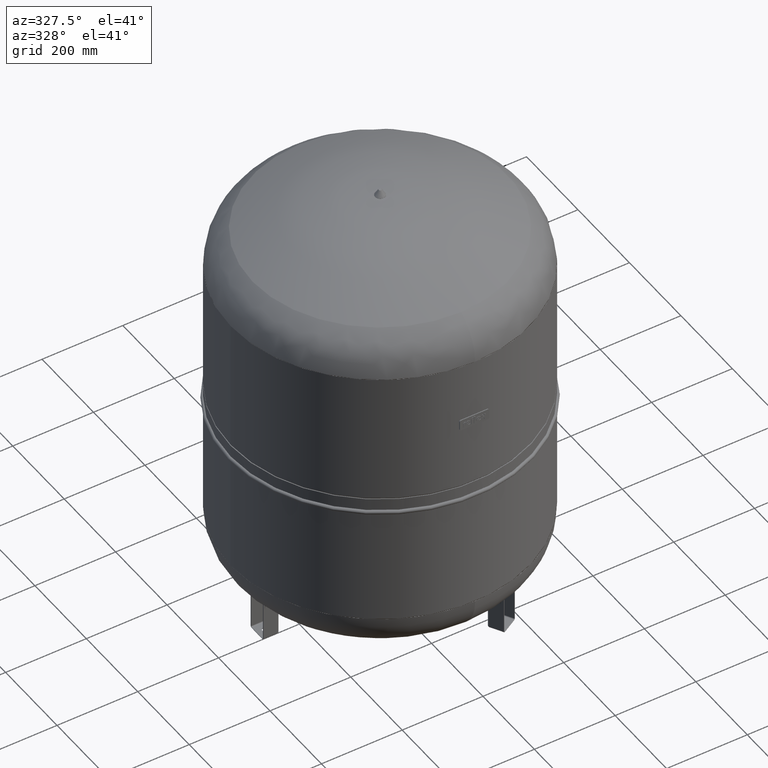
[diagram: clean part render]
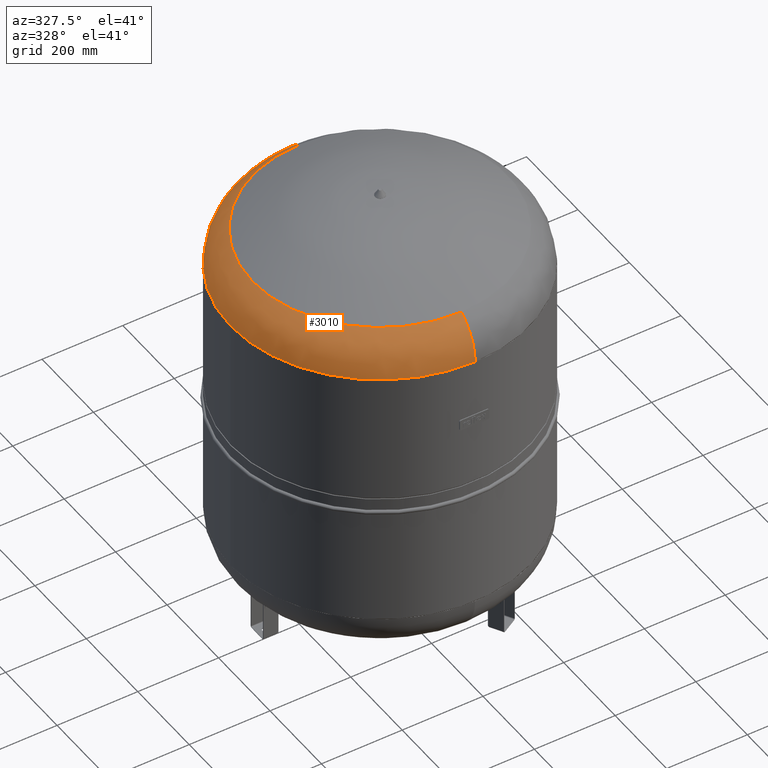
[diagram: same view with one face highlighted and labeled with its STEP entity id]
A machine part, auxiliary view. The second image highlights one B-rep face of the part: STEP entity #3010.
In plain terms, the highlighted face is a freeform B-spline surface patch.
Its self-contained STEP definition (entity closure, byte-faithful):
#2771=CARTESIAN_POINT('',(-370.0,-3.468087E-014,881.206120388130440));
#2772=VERTEX_POINT('',#2771);
#2796=CARTESIAN_POINT('',(0.0,-370.000000000000060,881.206120388130670));
#2797=VERTEX_POINT('',#2796);
#2805=CARTESIAN_POINT('',(0.0,-3.468087E-014,881.206120388130440));
#2806=DIRECTION('',(0.0,0.0,1.0));
#2807=DIRECTION('',(-1.0,0.0,0.0));
#2808=AXIS2_PLACEMENT_3D('',#2805,#2806,#2807);
#2809=CIRCLE('',#2808,370.0);
#2810=EDGE_CURVE('',#2772,#2797,#2809,.T.);
#2868=CARTESIAN_POINT('',(0.0,-315.931034482758610,979.014494274920590));
#2869=VERTEX_POINT('',#2868);
#2870=CARTESIAN_POINT('',(0.0,-254.500000000000060,881.206120388130560));
#2871=DIRECTION('',(-1.0,0.0,0.0));
#2872=DIRECTION('',(0.0,-1.0,0.0));
#2873=AXIS2_PLACEMENT_3D('',#2870,#2871,#2872);
#2874=CIRCLE('',#2873,115.500000000000000);
#2875=EDGE_CURVE('',#2797,#2869,#2874,.T.);
#2878=CARTESIAN_POINT('',(-4.531044E-014,369.999999999999940,881.206120388130220));
#2879=VERTEX_POINT('',#2878);
#2887=CARTESIAN_POINT('',(-3.868912E-014,315.931034482758610,979.014494274920370));
#2888=VERTEX_POINT('',#2887);
#2889=CARTESIAN_POINT('',(-3.116623E-014,254.500000000000000,881.206120388130330));
#2890=DIRECTION('',(1.0,0.0,0.0));
#2891=DIRECTION('',(0.0,1.0,0.0));
#2892=AXIS2_PLACEMENT_3D('',#2889,#2890,#2891);
#2893=CIRCLE('',#2892,115.500000000000000);
#2894=EDGE_CURVE('',#2879,#2888,#2893,.T.);
#2923=CARTESIAN_POINT('',(-315.931034482758610,-1.671377E-014,979.014494274920480));
#2924=VERTEX_POINT('',#2923);
#2925=CARTESIAN_POINT('',(0.0,-1.671377E-014,979.014494274920480));
#2926=DIRECTION('',(0.0,0.0,1.0));
#2927=DIRECTION('',(-1.0,0.0,0.0));
#2928=AXIS2_PLACEMENT_3D('',#2925,#2926,#2927);
#2929=CIRCLE('',#2928,315.931034482758610);
#2930=EDGE_CURVE('',#2924,#2869,#2929,.T.);
#2933=CARTESIAN_POINT('',(0.0,-1.671377E-014,979.014494274920480));
#2934=DIRECTION('',(0.0,0.0,1.0));
#2935=DIRECTION('',(-1.0,0.0,0.0));
#2936=AXIS2_PLACEMENT_3D('',#2933,#2934,#2935);
#2937=CIRCLE('',#2936,315.931034482758610);
#2938=EDGE_CURVE('',#2888,#2924,#2937,.T.);
#2943=CARTESIAN_POINT('',(-1.702203E-014,139.000000000000060,881.206120388129990));
#2944=CARTESIAN_POINT('',(-1.702203E-014,138.999999999999770,996.706120388130330));
#2945=CARTESIAN_POINT('',(-3.116623E-014,254.500000000000000,996.706120388130330));
#2946=CARTESIAN_POINT('',(-4.531044E-014,370.000000000000280,996.706120388130440));
#2947=CARTESIAN_POINT('',(-4.531044E-014,369.999999999999940,881.206120388129990));
#2948=CARTESIAN_POINT('',(-139.000000000000090,139.0,881.206120388129990));
#2949=CARTESIAN_POINT('',(-138.999999999999770,138.999999999999720,996.706120388130330));
#2950=CARTESIAN_POINT('',(-254.500000000000000,254.499999999999860,996.706120388130330));
#2951=CARTESIAN_POINT('',(-370.000000000000230,370.000000000000110,996.706120388130330));
#2952=CARTESIAN_POINT('',(-370.0,369.999999999999890,881.206120388129990));
#2953=CARTESIAN_POINT('',(-139.000000000000090,-5.170290E-014,881.206120388129990));
#2954=CARTESIAN_POINT('',(-138.999999999999770,-3.048590E-014,996.706120388130330));
#2955=CARTESIAN_POINT('',(-254.500000000000000,-4.463010E-014,996.706120388130330));
#2956=CARTESIAN_POINT('',(-370.000000000000280,-5.877430E-014,996.706120388130440));
#2957=CARTESIAN_POINT('',(-370.0,-7.999131E-014,881.206120388130100));
#2958=CARTESIAN_POINT('',(-139.000000000000030,-139.000000000000110,881.206120388129990));
#2959=CARTESIAN_POINT('',(-138.999999999999720,-138.999999999999770,996.706120388130330));
#2960=CARTESIAN_POINT('',(-254.499999999999910,-254.500000000000000,996.706120388130330));
#2961=CARTESIAN_POINT('',(-370.000000000000110,-370.000000000000230,996.706120388130560));
#2962=CARTESIAN_POINT('',(-369.999999999999890,-370.0,881.206120388130220));
#2963=CARTESIAN_POINT('',(1.702203E-014,-139.000000000000110,881.206120388129990));
#2964=CARTESIAN_POINT('',(1.702203E-014,-138.999999999999770,996.706120388130330));
#2965=CARTESIAN_POINT('',(3.116623E-014,-254.500000000000000,996.706120388130330));
#2966=CARTESIAN_POINT('',(4.531044E-014,-370.000000000000280,996.706120388130560));
#2967=CARTESIAN_POINT('',(4.531044E-014,-370.000000000000060,881.206120388130220));
#2968=CARTESIAN_POINT('',(139.000000000000090,-139.000000000000090,881.206120388129990));
#2969=CARTESIAN_POINT('',(138.999999999999770,-138.999999999999740,996.706120388130330));
#2970=CARTESIAN_POINT('',(254.500000000000000,-254.499999999999910,996.706120388130330));
#2971=CARTESIAN_POINT('',(370.000000000000230,-370.000000000000110,996.706120388130560));
#2972=CARTESIAN_POINT('',(370.0,-369.999999999999890,881.206120388130220));
#2973=CARTESIAN_POINT('',(139.000000000000090,-1.765884E-014,881.206120388129990));
#2974=CARTESIAN_POINT('',(138.999999999999770,3.558161E-015,996.706120388130330));
#2975=CARTESIAN_POINT('',(254.500000000000000,1.770236E-014,996.706120388130330));
#2976=CARTESIAN_POINT('',(370.000000000000280,3.184657E-014,996.706120388130440));
#2977=CARTESIAN_POINT('',(370.0,1.062956E-014,881.206120388130100));
#2978=CARTESIAN_POINT('',(139.000000000000030,139.000000000000030,881.206120388129990));
#2979=CARTESIAN_POINT('',(138.999999999999720,138.999999999999740,996.706120388130330));
#2980=CARTESIAN_POINT('',(254.499999999999910,254.500000000000000,996.706120388130330));
#2981=CARTESIAN_POINT('',(370.000000000000110,370.000000000000230,996.706120388130330));
#2982=CARTESIAN_POINT('',(369.999999999999890,369.999999999999890,881.206120388129990));
#2983=CARTESIAN_POINT('',(-1.702203E-014,139.000000000000060,881.206120388129990));
#2984=CARTESIAN_POINT('',(-1.702203E-014,138.999999999999770,996.706120388130330));
#2985=CARTESIAN_POINT('',(-3.116623E-014,254.500000000000000,996.706120388130330));
#2986=CARTESIAN_POINT('',(-4.531044E-014,370.000000000000280,996.706120388130440));
#2987=CARTESIAN_POINT('',(-4.531044E-014,369.999999999999940,881.206120388129990));
#2995=(BOUNDED_SURFACE()B_SPLINE_SURFACE(2,2,((#2943,#2948,#2953,#2958,#2963,#2968,#2973,#2978,#2983),(#2944,#2949,#2954,#2959,#2964,#2969,#2974,#2979,#2984),(#2945,#2950,#2955,#2960,#2965,#2970,#2975,#2980,#2985),(#2946,#2951,#2956,#2961,#2966,#2971,#2976,#2981,#2986),(#2947,#2952,#2957,#2962,#2967,#2972,#2977,#2982,#2987)),.UNSPECIFIED.,.F.,.T.,.U.)B_SPLINE_SURFACE_WITH_KNOTS((3,2,3),(3,2,2,2,3),(-3.141592653589796,-1.570796326794897,2.557070E-015),(0.0,1.570796326794897,3.141592653589793,4.712388980384690,6.283185307179586),.UNSPECIFIED.)GEOMETRIC_REPRESENTATION_ITEM()RATIONAL_B_SPLINE_SURFACE(((1.0,0.707106781186548,1.0,0.707106781186548,1.0,0.707106781186548,1.0,0.707106781186548,1.0),(0.707106781186547,0.500000000000000,0.707106781186547,0.500000000000000,0.707106781186547,0.500000000000000,0.707106781186547,0.500000000000000,0.707106781186547),(1.0,0.707106781186548,1.0,0.707106781186548,1.0,0.707106781186548,1.0,0.707106781186548,1.0),(0.707106781186544,0.499999999999998,0.707106781186544,0.499999999999998,0.707106781186544,0.499999999999998,0.707106781186544,0.499999999999998,0.707106781186544),(1.0,0.707106781186548,1.0,0.707106781186548,1.0,0.707106781186548,1.0,0.707106781186548,1.0)))REPRESENTATION_ITEM('')SURFACE());
#2996=ORIENTED_EDGE('',*,*,#2875,.T.);
#2997=ORIENTED_EDGE('',*,*,#2930,.F.);
#2998=ORIENTED_EDGE('',*,*,#2938,.F.);
#2999=ORIENTED_EDGE('',*,*,#2894,.F.);
#3000=CARTESIAN_POINT('',(0.0,-3.468087E-014,881.206120388130440));
#3001=DIRECTION('',(0.0,0.0,1.0));
#3002=DIRECTION('',(-1.0,0.0,0.0));
#3003=AXIS2_PLACEMENT_3D('',#3000,#3001,#3002);
#3004=CIRCLE('',#3003,370.0);
#3005=EDGE_CURVE('',#2879,#2772,#3004,.T.);
#3006=ORIENTED_EDGE('',*,*,#3005,.T.);
#3007=ORIENTED_EDGE('',*,*,#2810,.T.);
#3008=EDGE_LOOP('',(#2996,#2997,#2998,#2999,#3006,#3007));
#3009=FACE_OUTER_BOUND('',#3008,.T.);
#3010=ADVANCED_FACE('',(#3009),#2995,.T.);